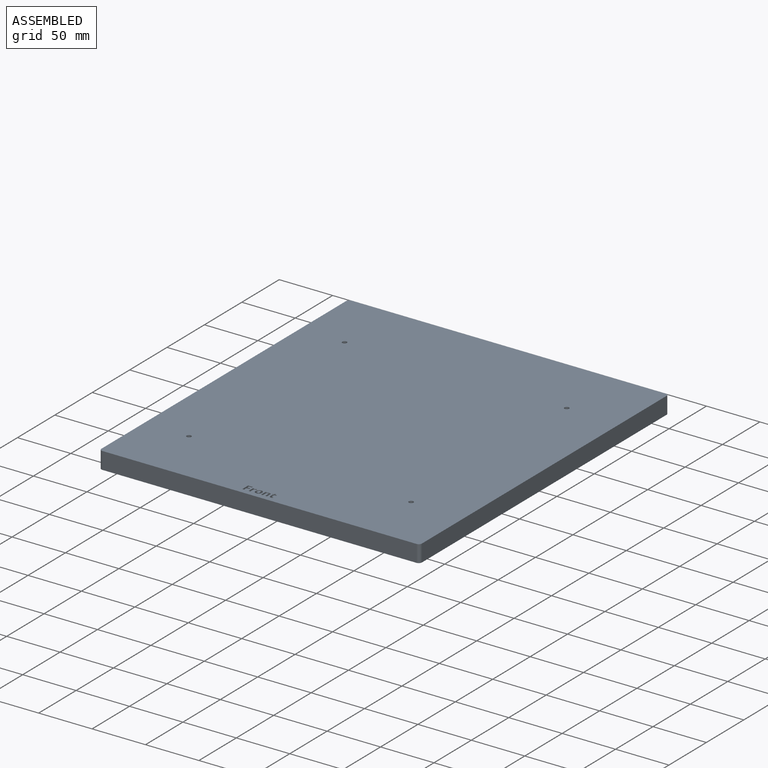
[diagram: assembled view]
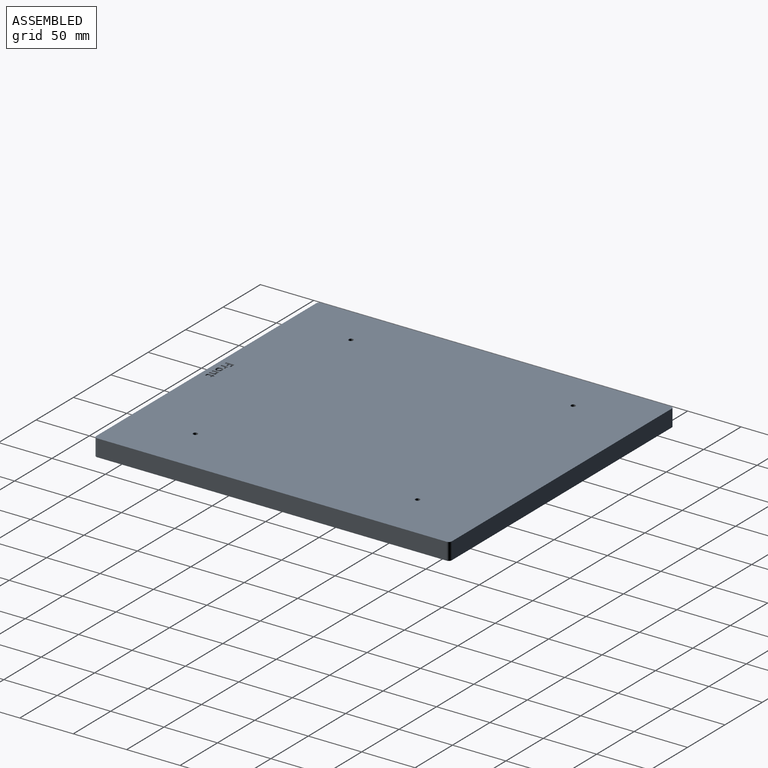
[diagram: assembled view, second angle]
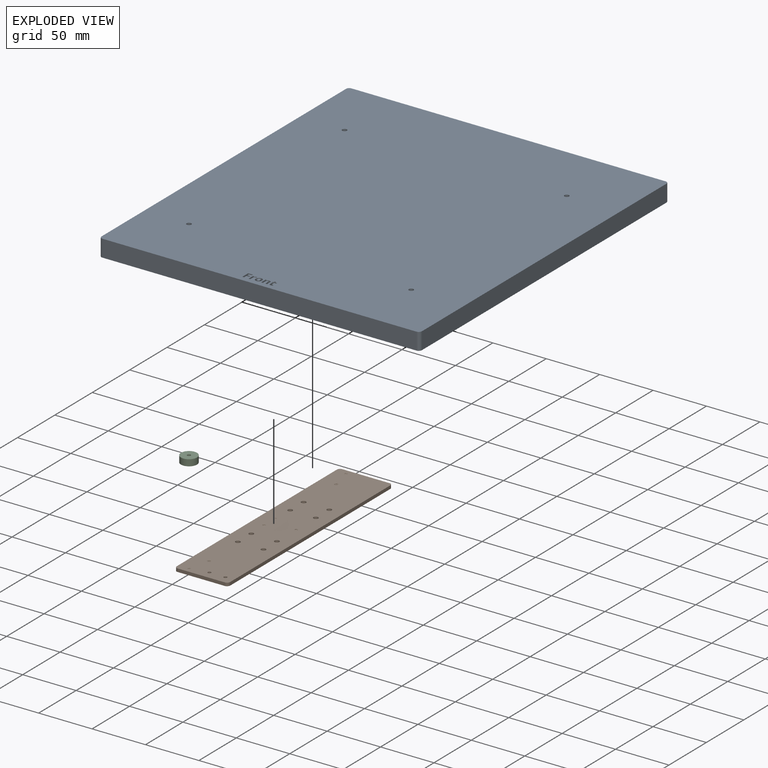
[diagram: exploded view]
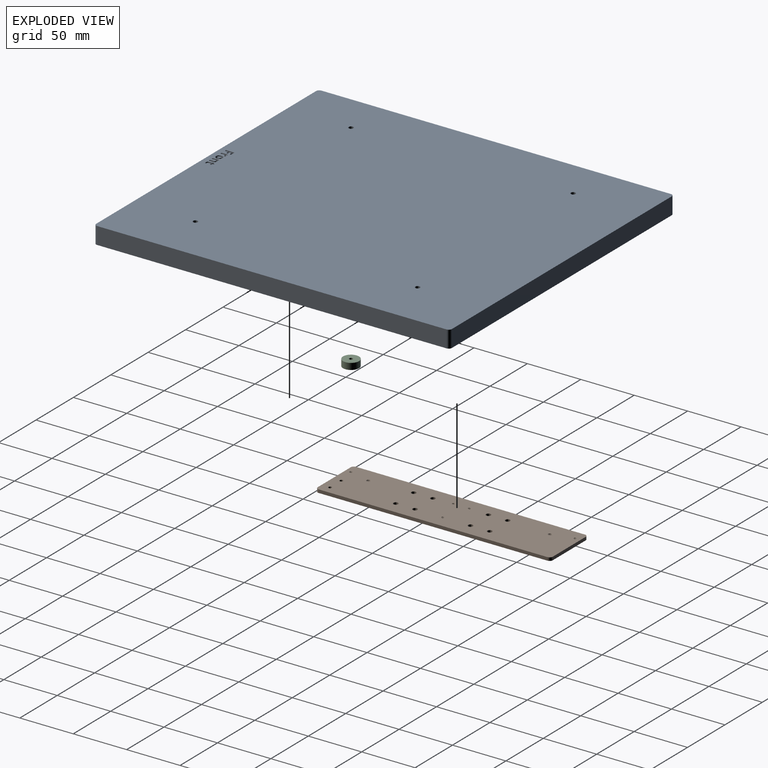
[diagram: exploded view, second angle]
ASSEMBLY  parts=3 mates=2
PART A: 96 faces, bbox 300x333x16 mm
  f0: plane 333x300mm, normal (0,0,1), area 99734.6mm2, adj f1,f2,f3,f4,f5,f6,f7,f8
  f1: plane 327x16mm, normal (1,0,0), area 5232mm2, adj f0,f2,f8,f9
  f2: cylinder r=3mm len=16mm, axis (0,0,-1), area 75.4mm2, adj f0,f1,f3,f9
  f3: plane 294x16mm, normal (0,1,0), area 4704mm2, adj f0,f2,f4,f9
  f4: cylinder r=3mm len=16mm, axis (0,0,-1), area 75.4mm2, adj f0,f3,f5,f9
  f5: plane 327x16mm, normal (-1,0,0), area 5232mm2, adj f0,f4,f6,f9
  f6: cylinder r=3mm len=16mm, axis (0,0,-1), area 75.4mm2, adj f0,f5,f7,f9
  f7: plane 294x16mm, normal (0,-1,0), area 4704mm2, adj f0,f6,f8,f9
  f8: cylinder r=3mm len=16mm, axis (0,0,-1), area 75.4mm2, adj f0,f1,f7,f9
  f9: plane 333x300mm, normal (0,0,-1), area 99834.2mm2, adj f1,f2,f3,f4,f5,f6,f7,f8
  f10: cylinder r=2.15mm len=16mm, axis (0,0,1), area 216.1mm2, adj f0,f9
  f11: cylinder r=2.15mm len=16mm, axis (0,0,1), area 216.1mm2, adj f0,f9
  f12: cylinder r=2.15mm len=16mm, axis (0,0,1), area 216.1mm2, adj f0,f9
  f13: cylinder r=2.15mm len=16mm, axis (0,0,1), area 216.1mm2, adj f0,f9
  f14: extruded ~5x0.55mm, area 2.8mm2, adj f0,f15,f26,f27
  f15: extruded ~5x1.03mm, area 5.4mm2, adj f0,f14,f16,f27
  f16: extruded ~5x0.81mm, area 5.6mm2, adj f0,f15,f17,f27
  f17: plane 5x0.08mm, normal (0,-1,0), area 0.4mm2, adj f0,f16,f18,f27
  f18: plane 5x1mm, normal (-0.97,-0.23,0), area 5.2mm2, adj f0,f17,f19,f27
  f19: plane 5x1.23mm, normal (0,-1,0), area 6.2mm2, adj f0,f18,f20,f27
  f20: plane 5.96x5mm, normal (1,0,0), area 29.8mm2, adj f0,f19,f21,f27
  f21: plane 5x1.63mm, normal (0,1,0), area 8.1mm2, adj f0,f20,f22,f27
  f22: plane 5x3.04mm, normal (-1,0,0), area 15.2mm2, adj f0,f21,f23,f27
  f23: extruded ~5x1.12mm, area 6.2mm2, adj f0,f22,f24,f27
  f24: extruded ~5x1.21mm, area 6.5mm2, adj f0,f23,f25,f27
  f25: extruded ~5x0.48mm, area 2.4mm2, adj f0,f24,f26,f27
  f26: plane 5x1.52mm, normal (-1,0.08,0), area 7.6mm2, adj f0,f14,f25,f27
  f27: plane 6.08x3.88mm, normal (0,0,1), area 12.7mm2, adj f14,f15,f16,f17,f18,f19,f20,f21
  f28: plane 5x1.63mm, normal (0,1,0), area 8.1mm2, adj f0,f29,f44,f45
  f29: plane 5x3.89mm, normal (-1,0,0), area 19.4mm2, adj f0,f28,f30,f45
  f30: extruded ~5x1.62mm, area 8.8mm2, adj f0,f29,f31,f45
  f31: extruded ~5x1.58mm, area 8.6mm2, adj f0,f30,f32,f45
  f32: extruded ~5x1.08mm, area 5.6mm2, adj f0,f31,f33,f45
  f33: extruded ~5x0.75mm, area 5mm2, adj f0,f32,f34,f45
  f34: plane 5x0.09mm, normal (0,-1,0), area 0.5mm2, adj f0,f33,f35,f45
  f35: plane 5x0.76mm, normal (-0.96,-0.28,0), area 4mm2, adj f0,f34,f36,f45
  f36: plane 5x1.24mm, normal (0,-1,0), area 6.2mm2, adj f0,f35,f37,f45
  f37: plane 5.96x5mm, normal (1,0,0), area 29.8mm2, adj f0,f36,f38,f45
  f38: plane 5x1.63mm, normal (0,1,0), area 8.1mm2, adj f0,f37,f39,f45
  f39: plane 5x2.81mm, normal (-1,0,0), area 14mm2, adj f0,f38,f40,f45
  f40: extruded ~5x1.51mm, area 7.8mm2, adj f0,f39,f41,f45
  f41: extruded ~5x0.99mm, area 5.7mm2, adj f0,f40,f42,f45
  f42: extruded ~5x0.73mm, area 4.2mm2, adj f0,f41,f43,f45
  f43: extruded ~5x0.97mm, area 5mm2, adj f0,f42,f44,f45
  f44: plane 5x3.48mm, normal (1,0,0), area 17.4mm2, adj f0,f28,f43,f45
  f45: plane 6.08x5.51mm, normal (0,0,1), area 21.7mm2, adj f28,f29,f30,f31,f32,f33,f34,f35
  f46: extruded ~5x1.02mm, area 5.2mm2, adj f0,f47,f63,f64
  f47: extruded ~5x0.52mm, area 2.8mm2, adj f0,f46,f48,f64
  f48: extruded ~5x0.51mm, area 2.8mm2, adj f0,f47,f49,f64
  f49: plane 5x2.87mm, normal (-1,0,0), area 14.4mm2, adj f0,f48,f50,f64
  f50: plane 5x1.67mm, normal (0,1,0), area 8.3mm2, adj f0,f49,f51,f64
  f51: plane 5x1.22mm, normal (-1,0,0), area 6.1mm2, adj f0,f50,f52,f64
  f52: plane 5x1.67mm, normal (0,-1,0), area 8.3mm2, adj f0,f51,f53,f64
  f53: plane 5x1.27mm, normal (-1,0,0), area 6.3mm2, adj f0,f52,f54,f64
  f54: plane 5x1.04mm, normal (0,-1,0), area 5.2mm2, adj f0,f53,f55,f64
  f55: plane 5x1.26mm, normal (0.94,-0.35,0), area 6.7mm2, adj f0,f54,f56,f64
  f56: plane 5x0.9mm, normal (0.52,-0.85,0), area 5.2mm2, adj f0,f55,f57,f64
  f57: plane 5x0.69mm, normal (1,0,0), area 3.4mm2, adj f0,f56,f58,f64
  f58: plane 5x0.78mm, normal (0,1,0), area 3.9mm2, adj f0,f57,f59,f64
  f59: plane 5x2.87mm, normal (1,0,0), area 14.4mm2, adj f0,f58,f60,f64
  f60: extruded ~5x1.48mm, area 7.9mm2, adj f0,f59,f61,f64
  f61: extruded ~5x1.42mm, area 7.8mm2, adj f0,f60,f62,f64
  f62: extruded ~5x1.49mm, area 7.6mm2, adj f0,f61,f63,f64
  f63: plane 5x1.21mm, normal (-1,0,0), area 6.1mm2, adj f0,f46,f62,f64
  f64: plane 7.34x4.14mm, normal (0,0,1), area 15.9mm2, adj f46,f47,f48,f49,f50,f51,f52,f53
  f65: extruded ~5x2.28mm, area 12.3mm2, adj f0,f66,f82,f83
  f66: extruded ~5x1.64mm, area 8.5mm2, adj f0,f65,f67,f83
  f67: extruded ~5x1.07mm, area 7.5mm2, adj f0,f66,f68,f83
  f68: extruded ~5x1.52mm, area 7.9mm2, adj f0,f67,f69,f83
  f69: extruded ~5x2.15mm, area 11.8mm2, adj f0,f68,f70,f83
  f70: extruded ~5x2.27mm, area 12.3mm2, adj f0,f69,f71,f83
  f71: extruded ~5x1.64mm, area 8.5mm2, adj f0,f70,f72,f83
  f72: extruded ~5x1.08mm, area 7.5mm2, adj f0,f71,f73,f83
  f73: extruded ~5x1.52mm, area 7.9mm2, adj f0,f72,f82,f83
  f74: extruded ~5x1.34mm, area 6.9mm2, adj f75,f81,f83,f84
  f75: extruded ~5x1.33mm, area 6.9mm2, adj f74,f76,f83,f84
  f76: extruded ~5x0.94mm, area 5.4mm2, adj f75,f77,f83,f84
  f77: extruded ~5x0.95mm, area 5.5mm2, adj f76,f78,f83,f84
  f78: extruded ~5x1.33mm, area 6.9mm2, adj f77,f79,f83,f84
  f79: extruded ~5x1.34mm, area 6.9mm2, adj f78,f80,f83,f84
  f80: extruded ~5x0.94mm, area 5.4mm2, adj f79,f81,f83,f84
  f81: extruded ~5x0.95mm, area 5.5mm2, adj f74,f80,f83,f84
  f82: extruded ~5x2.14mm, area 11.8mm2, adj f0,f65,f73,f83
  f83: plane 6.18x5.78mm, normal (0,0,1), area 21.8mm2, adj f65,f66,f67,f68,f69,f70,f71,f72
  f84: plane 3.56x2.46mm, normal (0,0,1), area 7.4mm2, adj f74,f75,f76,f77,f78,f79,f80,f81
  f85: plane 5x1.63mm, normal (0,1,0), area 8.1mm2, adj f0,f86,f94,f95
  f86: plane 5x3.08mm, normal (-1,0,0), area 15.4mm2, adj f0,f85,f87,f95
  f87: plane 5x2.65mm, normal (0,1,0), area 13.2mm2, adj f0,f86,f88,f95
  f88: plane 5x1.35mm, normal (-1,0,0), area 6.8mm2, adj f0,f87,f89,f95
  f89: plane 5x2.65mm, normal (0,-1,0), area 13.2mm2, adj f0,f88,f90,f95
  f90: plane 5x2.01mm, normal (-1,0,0), area 10.1mm2, adj f0,f89,f91,f95
  f91: plane 5x2.84mm, normal (0,1,0), area 14.2mm2, adj f0,f90,f92,f95
  f92: plane 5x1.36mm, normal (-1,0,0), area 6.8mm2, adj f0,f91,f93,f95
  f93: plane 5x4.47mm, normal (0,-1,0), area 22.4mm2, adj f0,f92,f94,f95
  f94: plane 7.8x5mm, normal (1,0,0), area 39mm2, adj f0,f85,f93,f95
  f95: plane 7.8x4.47mm, normal (0,0,1), area 20.1mm2, adj f85,f86,f87,f88,f89,f90,f91,f92
PART B: 48 faces, bbox 50.2x220.2x3.8 mm
  f0: plane 220.2x50.2mm, normal (0,0,1), area 10805.9mm2, adj f2,f3,f4,f5,f6,f7,f8,f9
  f1: plane 220.19x50.19mm, normal (0,0,-1), area 10805.9mm2, adj f2,f3,f4,f5,f6,f7,f8,f9
  f2: plane 44x3mm, normal (0,1,0), area 132mm2, adj f0,f1,f3,f9
  f3: cylinder r=3mm len=3mm, axis (0,0,-1), area 14.1mm2, adj f0,f1,f2,f4
  f4: plane 214x3mm, normal (-1,0,0), area 642mm2, adj f0,f1,f3,f5
  f5: cylinder r=3mm len=3mm, axis (0,0,-1), area 14.1mm2, adj f0,f1,f4,f6
  f6: plane 44x3mm, normal (0,-1,0), area 132mm2, adj f0,f1,f5,f7
  f7: cylinder r=3mm len=3mm, axis (0,0,-1), area 14.1mm2, adj f0,f1,f6,f8
  f8: plane 214x3mm, normal (1,0,0), area 642mm2, adj f0,f1,f7,f9
  f9: cylinder r=3mm len=3mm, axis (0,0,-1), area 14.1mm2, adj f0,f1,f2,f8
  f10: cylinder r=2.2mm len=4.4mm, axis (0,0,1), area 41.5mm2, adj f0,f1
  f11: cylinder r=2.2mm len=4.4mm, axis (0,0,1), area 41.5mm2, adj f0,f1
  f12: cylinder r=2.2mm len=4.4mm, axis (0,0,1), area 41.5mm2, adj f0,f1
  f13: cylinder r=2.2mm len=4.4mm, axis (0,0,1), area 41.5mm2, adj f0,f1
  f14: cylinder r=2.2mm len=4.4mm, axis (0,0,1), area 41.5mm2, adj f0,f1
  f15: cylinder r=2.2mm len=4.4mm, axis (0,0,1), area 41.5mm2, adj f0,f1
  f16: cylinder r=2.2mm len=4.4mm, axis (0,0,1), area 41.5mm2, adj f0,f1
  f17: cylinder r=2.2mm len=4.4mm, axis (0,0,1), area 41.5mm2, adj f0,f1
  f18: cylinder r=1.5mm len=3mm, axis (0,0,1), area 28.3mm2, adj f0,f1
  f19: cylinder r=1.5mm len=3mm, axis (0,0,1), area 28.3mm2, adj f0,f1
  f20: bspline ~3.51x3.32mm, area 16.3mm2, adj f0,f1,f22,f23
  f21: bspline ~3.51x3.41mm, area 16.3mm2, adj f0,f1,f22,f23
  f22: bspline ~3.56x3.23mm, area 4.2mm2, adj f0,f1,f20,f21
  f23: cylinder r=1.25mm len=3mm, axis (0,0,-1), area 6.1mm2, adj f0,f1,f20,f21
  f24: bspline ~3.51x3.32mm, area 16.3mm2, adj f0,f1,f26,f27
  f25: bspline ~3.51x3.41mm, area 16.3mm2, adj f0,f1,f26,f27
  f26: bspline ~3.56x3.23mm, area 4.2mm2, adj f0,f1,f24,f25
  f27: cylinder r=1.25mm len=3mm, axis (0,0,-1), area 6.1mm2, adj f0,f1,f24,f25
  f28: bspline ~3.51x3.32mm, area 16.3mm2, adj f0,f1,f30,f31
  f29: bspline ~3.51x3.41mm, area 16.3mm2, adj f0,f1,f30,f31
  f30: bspline ~3.56x3.23mm, area 4.2mm2, adj f0,f1,f28,f29
  f31: cylinder r=1.25mm len=3mm, axis (0,0,-1), area 6.1mm2, adj f0,f1,f28,f29
  f32: bspline ~3.51x3.41mm, area 16.3mm2, adj f0,f1,f34,f35
  f33: bspline ~3.51x3.41mm, area 16.3mm2, adj f0,f1,f34,f35
  f34: bspline ~3.56x3.23mm, area 4.2mm2, adj f0,f1,f32,f33
  f35: cylinder r=1.25mm len=3mm, axis (0,0,-1), area 6.1mm2, adj f0,f1,f32,f33
  f36: bspline ~3.51x3.32mm, area 16.3mm2, adj f0,f1,f38,f39
  f37: bspline ~3.51x3.41mm, area 16.3mm2, adj f0,f1,f38,f39
  f38: bspline ~3.56x3.23mm, area 4.2mm2, adj f0,f1,f36,f37
  f39: cylinder r=1.25mm len=3mm, axis (0,0,-1), area 6.1mm2, adj f0,f1,f36,f37
  f40: bspline ~4.69x4.06mm, area 21.7mm2, adj f0,f1,f42,f43
  f41: bspline ~4.69x4.06mm, area 21.7mm2, adj f0,f1,f42,f43
  f42: bspline ~4.76x4.12mm, area 5.6mm2, adj f0,f1,f40,f41
  f43: cylinder r=1.65mm len=3.3mm, axis (0,0,-1), area 7.8mm2, adj f0,f1,f40,f41
  f44: bspline ~4.69x4.06mm, area 21.7mm2, adj f0,f1,f46,f47
  f45: bspline ~4.69x4.06mm, area 21.7mm2, adj f0,f1,f46,f47
  f46: bspline ~4.76x4.12mm, area 5.6mm2, adj f0,f1,f44,f45
  f47: cylinder r=1.65mm len=3.3mm, axis (0,0,-1), area 7.8mm2, adj f0,f1,f44,f45
PART C: 34 faces, bbox 15x15x6 mm
  f0: plane 0.27x0.12mm, normal (0,0,1), area 0mm2, adj f5,f31,f33
  f1: plane 0.27x0.11mm, normal (0,0,1), area 0mm2, adj f5,f25,f27
  f2: plane 0.2x0.19mm, normal (0,0,1), area 0mm2, adj f5,f19,f21
  f3: plane 0.27x0.12mm, normal (0,0,1), area 0mm2, adj f5,f16,f18
  f4: plane 0.2x0.19mm, normal (0,0,1), area 0mm2, adj f5,f28,f30
  f5: cylinder r=1.6mm len=3.2mm, axis (0,0,-1), area 20.1mm2, adj f0,f1,f2,f3,f4,f8,f15,f17
  f6: cylinder r=7.5mm len=15mm, axis (0,0,-1), area 282.7mm2, adj f7,f8
  f7: plane 15x15mm, normal (0,0,1), area 148.6mm2, adj f6,f9,f10,f11,f12,f13,f14
  f8: plane 15x15mm, normal (0,0,-1), area 168.7mm2, adj f5,f6
  f9: plane 2.61x2.4mm, normal (0.73,0.68,0), area 8.6mm2, adj f7,f10,f14,f18,f20,f22
  f10: plane 3.2x2.61mm, normal (-0.23,0.97,0), area 8.6mm2, adj f7,f9,f11,f16,f17,f19
  f11: plane 3.15x2.61mm, normal (-0.96,0.29,0), area 8.6mm2, adj f7,f10,f12,f21,f23,f25
  f12: plane 2.61x2.4mm, normal (-0.73,-0.68,0), area 8.6mm2, adj f7,f11,f13,f27,f29,f31
  f13: plane 3.2x2.61mm, normal (0.23,-0.97,0), area 8.6mm2, adj f7,f12,f14,f30,f32,f33
  f14: plane 3.15x2.61mm, normal (0.96,-0.29,0), area 8.6mm2, adj f7,f9,f13,f24,f26,f28
  f15: plane 0.27x0.11mm, normal (0,0,1), area 0mm2, adj f5,f22,f24
  f16: cylinder r=1.4mm len=1.58mm, axis (0.97,0.23,0), area 1.5mm2, adj f3,f10,f17,f18
  f17: bspline ~2.24x1.95mm, area 2.8mm2, adj f5,f10,f16,f19
  f18: cylinder r=1.4mm len=1.68mm, axis (0.68,-0.73,0), area 1.5mm2, adj f3,f9,f16,f20
  f19: cylinder r=1.4mm len=1.58mm, axis (0.97,0.23,0), area 1.5mm2, adj f2,f10,f17,f21
  f20: bspline ~2.45x2.44mm, area 2.8mm2, adj f5,f9,f18,f22
  f21: cylinder r=1.4mm len=1.62mm, axis (0.29,0.96,0), area 1.5mm2, adj f2,f11,f19,f23
  f22: cylinder r=1.4mm len=1.68mm, axis (0.68,-0.73,0), area 1.5mm2, adj f9,f15,f20,f24
  f23: bspline ~2.27x2.01mm, area 2.8mm2, adj f5,f11,f21,f25
  f24: cylinder r=1.4mm len=1.62mm, axis (-0.29,-0.96,0), area 1.5mm2, adj f14,f15,f22,f26
  f25: cylinder r=1.4mm len=1.62mm, axis (0.29,0.96,0), area 1.5mm2, adj f1,f11,f23,f27
  f26: bspline ~2.27x2.01mm, area 2.8mm2, adj f5,f14,f24,f28
  f27: cylinder r=1.4mm len=1.68mm, axis (-0.68,0.73,0), area 1.5mm2, adj f1,f12,f25,f29
  f28: cylinder r=1.4mm len=1.62mm, axis (-0.29,-0.96,0), area 1.5mm2, adj f4,f14,f26,f30
  f29: bspline ~2.45x2.44mm, area 2.8mm2, adj f5,f12,f27,f31
  f30: cylinder r=1.4mm len=1.58mm, axis (-0.97,-0.23,0), area 1.5mm2, adj f4,f13,f28,f32
  f31: cylinder r=1.4mm len=1.68mm, axis (-0.68,0.73,0), area 1.5mm2, adj f0,f12,f29,f33
  f32: bspline ~2.24x1.95mm, area 2.8mm2, adj f5,f13,f30,f33
  f33: cylinder r=1.4mm len=1.58mm, axis (-0.97,-0.23,0), area 1.5mm2, adj f0,f13,f31,f32
PLACE A rot(axis=(1,0,0),0deg) t=(13.82,-29.45,-160.95)mm
PLACE B t=(-79.07,-31.06,-169.95)mm
PLACE C rot(axis=(1,0,0),180deg) t=(-94.18,-135.95,-160.95)mm
MATE fastened A.f13 <-> C.f6  axis (0,0,-1) through (-94.18,-135.95,-160.95)mm
MATE fastened C.f6 <-> B.f0  axis (0,0,-1) through (-94.18,-135.95,-166.95)mm
